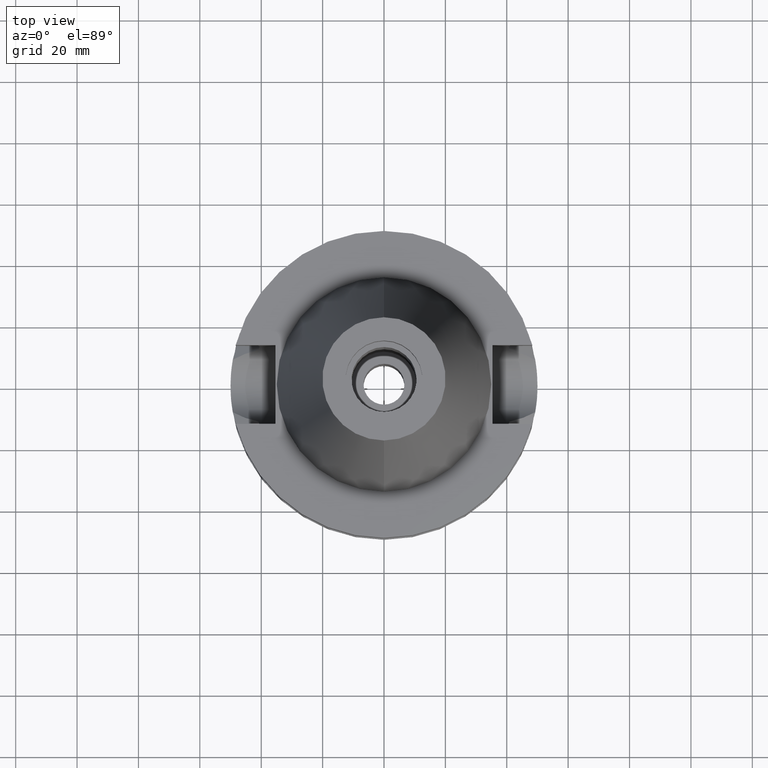
[diagram: clean part render]
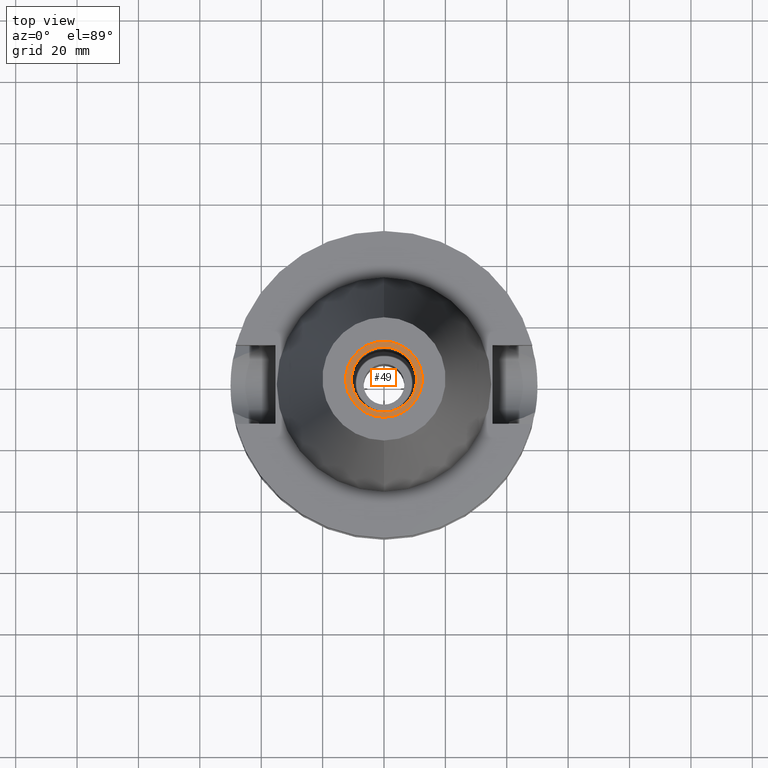
[diagram: same view with one face highlighted and labeled with its STEP entity id]
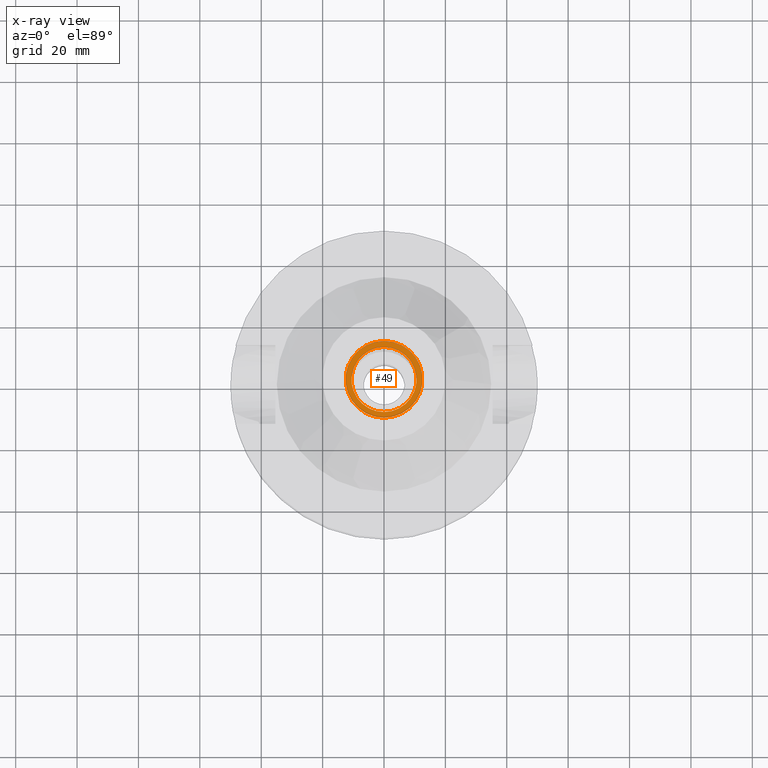
[diagram: x-ray of the same camera — body ghosted, the highlighted face saturated]
A machine part, top view. The second image highlights one B-rep face of the part: STEP entity #49.
The next image is the same camera in x-ray: the body ghosted, the highlighted face saturated — about 0% of this face is hidden behind the body in this view.
In plain terms, the highlighted planar face has unit normal (0, 0, -1).
Its self-contained STEP definition (entity closure, byte-faithful):
#1 = VERTEX_POINT ( 'NONE', #1862 ) ;
#44 = VERTEX_POINT ( 'NONE', #2455 ) ;
#49 = ADVANCED_FACE ( 'NONE', ( #2646, #1968 ), #238, .F. ) ;
#159 = CARTESIAN_POINT ( 'NONE',  ( 0.0000000000000000000, 2.584188443221000028E-14, 88.79999999999999716 ) ) ;
#238 = PLANE ( 'NONE',  #632 ) ;
#254 = ORIENTED_EDGE ( 'NONE', *, *, #619, .F. ) ;
#290 = CIRCLE ( 'NONE', #1204, 12.50000000000000000 ) ;
#324 = CARTESIAN_POINT ( 'NONE',  ( 0.0000000000000000000, -12.50000000000000000, 88.79999999999999716 ) ) ;
#391 = CIRCLE ( 'NONE', #2599, 10.59999999999999964 ) ;
#392 = CIRCLE ( 'NONE', #1057, 10.59999999999999964 ) ;
#563 = CARTESIAN_POINT ( 'NONE',  ( 0.0000000000000000000, 2.584188443221000028E-14, 88.79999999999999716 ) ) ;
#619 = EDGE_CURVE ( 'NONE', #44, #2436, #290, .T. ) ;
#632 = AXIS2_PLACEMENT_3D ( 'NONE', #719, #1032, #2154 ) ;
#658 = EDGE_LOOP ( 'NONE', ( #2699, #1678 ) ) ;
#719 = CARTESIAN_POINT ( 'NONE',  ( 0.0000000000000000000, 2.312133156789999731E-14, 88.79999999999999716 ) ) ;
#1032 = DIRECTION ( 'NONE',  ( 0.0000000000000000000, 0.0000000000000000000, -1.000000000000000000 ) ) ;
#1057 = AXIS2_PLACEMENT_3D ( 'NONE', #1072, #2726, #2291 ) ;
#1072 = CARTESIAN_POINT ( 'NONE',  ( 0.0000000000000000000, 2.584188443221000028E-14, 88.79999999999999716 ) ) ;
#1204 = AXIS2_PLACEMENT_3D ( 'NONE', #159, #1343, #2068 ) ;
#1321 = VERTEX_POINT ( 'NONE', #2465 ) ;
#1343 = DIRECTION ( 'NONE',  ( 0.0000000000000000000, 0.0000000000000000000, -1.000000000000000000 ) ) ;
#1536 = DIRECTION ( 'NONE',  ( 0.0000000000000000000, 0.0000000000000000000, -1.000000000000000000 ) ) ;
#1552 = DIRECTION ( 'NONE',  ( 0.0000000000000000000, 0.0000000000000000000, 1.000000000000000000 ) ) ;
#1678 = ORIENTED_EDGE ( 'NONE', *, *, #2506, .F. ) ;
#1862 = CARTESIAN_POINT ( 'NONE',  ( 0.0000000000000000000, 10.59999999999999964, 88.79999999999999716 ) ) ;
#1968 = FACE_BOUND ( 'NONE', #658, .T. ) ;
#2042 = DIRECTION ( 'NONE',  ( 0.0000000000000000000, -1.000000000000000000, 0.0000000000000000000 ) ) ;
#2065 = EDGE_CURVE ( 'NONE', #1, #1321, #391, .T. ) ;
#2068 = DIRECTION ( 'NONE',  ( 0.0000000000000000000, 1.000000000000000000, 0.0000000000000000000 ) ) ;
#2100 = CIRCLE ( 'NONE', #2603, 12.50000000000000000 ) ;
#2154 = DIRECTION ( 'NONE',  ( 0.0000000000000000000, -1.000000000000000000, 0.0000000000000000000 ) ) ;
#2232 = DIRECTION ( 'NONE',  ( 0.0000000000000000000, 1.000000000000000000, 0.0000000000000000000 ) ) ;
#2263 = CARTESIAN_POINT ( 'NONE',  ( 0.0000000000000000000, 2.584188443221000028E-14, 88.79999999999999716 ) ) ;
#2291 = DIRECTION ( 'NONE',  ( 0.0000000000000000000, -1.000000000000000000, 0.0000000000000000000 ) ) ;
#2385 = ORIENTED_EDGE ( 'NONE', *, *, #2610, .F. ) ;
#2436 = VERTEX_POINT ( 'NONE', #324 ) ;
#2455 = CARTESIAN_POINT ( 'NONE',  ( 0.0000000000000000000, 12.50000000000000000, 88.79999999999999716 ) ) ;
#2465 = CARTESIAN_POINT ( 'NONE',  ( 0.0000000000000000000, -10.59999999999999964, 88.79999999999999716 ) ) ;
#2506 = EDGE_CURVE ( 'NONE', #1321, #1, #392, .T. ) ;
#2599 = AXIS2_PLACEMENT_3D ( 'NONE', #2263, #1552, #2232 ) ;
#2603 = AXIS2_PLACEMENT_3D ( 'NONE', #563, #1536, #2042 ) ;
#2610 = EDGE_CURVE ( 'NONE', #2436, #44, #2100, .T. ) ;
#2644 = EDGE_LOOP ( 'NONE', ( #254, #2385 ) ) ;
#2646 = FACE_OUTER_BOUND ( 'NONE', #2644, .T. ) ;
#2699 = ORIENTED_EDGE ( 'NONE', *, *, #2065, .F. ) ;
#2726 = DIRECTION ( 'NONE',  ( 0.0000000000000000000, 0.0000000000000000000, 1.000000000000000000 ) ) ;